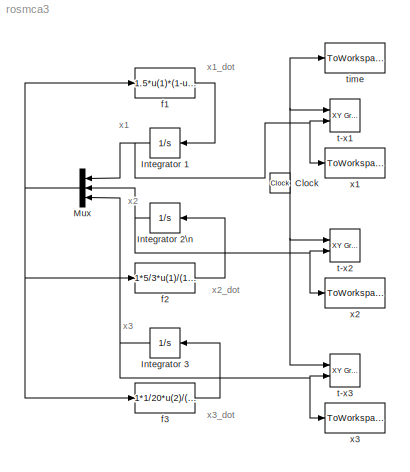
MODEL rosmca3
KIND model
BLOCK [Clock] Clock
  Decimation = 1
  SID = 1
BLOCK [Integrator] Integrator 1
  InitialCondition = 1
  Ports = [1, 1]
  SID = 2
BLOCK [Integrator] Integrator 2\n
  InitialCondition = 1
  Ports = [1, 1]
  SID = 3
BLOCK [Integrator] Integrator 3
  InitialCondition = 10
  Ports = [1, 1]
  SID = 4
BLOCK [Mux] Mux
  DisplayOption = bar
  Inputs = 3
  Ports = [3, 1]
  SID = 5
BLOCK [Fcn] f1
  Expr = 1.5*u(1)*(1-u(1)/1)-5/3*u(1)/(1/3+u(1))*u(2)
  SID = 6
BLOCK [Fcn] f2
  Expr = 1*5/3*u(1)/(1/3+u(1))*u(2)-1/20*u(2)/(1/2+u(2))*u(3)-4/10*u(2)
  SID = 7
BLOCK [Fcn] f3
  Expr = 1*1/20*u(2)/(1/2+u(2))*u(3)-1/100*u(3)
  SID = 8
BLOCK [Reference] t-x1  REF=simulink/Sinks/XY Graph
  Ports = [2]
  SID = 9
  SourceBlock = simulink/Sinks/XY Graph
  SourceType = XY scope.
  st = -1
  xmax = 2000
  xmin = 0
  ymax = 2
  ymin = 0
BLOCK [Reference] t-x2  REF=simulink/Sinks/XY Graph
  Ports = [2]
  SID = 10
  SourceBlock = simulink/Sinks/XY Graph
  SourceType = XY scope.
  st = -1
  xmax = 2000
  xmin = 0
  ymax = 2
  ymin = 0
BLOCK [Reference] t-x3  REF=simulink/Sinks/XY Graph
  Ports = [2]
  SID = 11
  SourceBlock = simulink/Sinks/XY Graph
  SourceType = XY scope.
  st = -1
  xmax = 2000
  xmin = 0
  ymax = 15
  ymin = 0
BLOCK [ToWorkspace] time
  MaxDataPoints = inf
  Ports = [1]
  SID = 12
  SampleTime = -1
  VariableName = t
BLOCK [ToWorkspace] x1
  MaxDataPoints = inf
  Ports = [1]
  SID = 13
  SampleTime = -1
  VariableName = x1
BLOCK [ToWorkspace] x2
  MaxDataPoints = inf
  Ports = [1]
  SID = 14
  SampleTime = -1
  VariableName = x2
BLOCK [ToWorkspace] x3
  MaxDataPoints = inf
  Ports = [1]
  SID = 15
  SampleTime = -1
  VariableName = x3
ANNOTATION (root): x1
ANNOTATION (root): x1_dot
ANNOTATION (root): x2
ANNOTATION (root): x2_dot
ANNOTATION (root): x3
ANNOTATION (root): x3_dot
NET Clock:1 -> t-x1:1, t-x2:1, t-x3:1, time:1
NET Integrator 1:1 -> Mux:1, t-x1:2, x1:1
NET Integrator 2\n:1 -> Mux:2, t-x2:2, x2:1
NET Integrator 3:1 -> Mux:3, t-x3:2, x3:1
NET Mux:1 -> f1:1, f2:1, f3:1
LINE f1:1 -> Integrator 1:1
LINE f2:1 -> Integrator 2\n:1
LINE f3:1 -> Integrator 3:1
note: NET lines group one-source signal fan-out (src -> all destinations, sorted); 1:1 wires keep LINE
